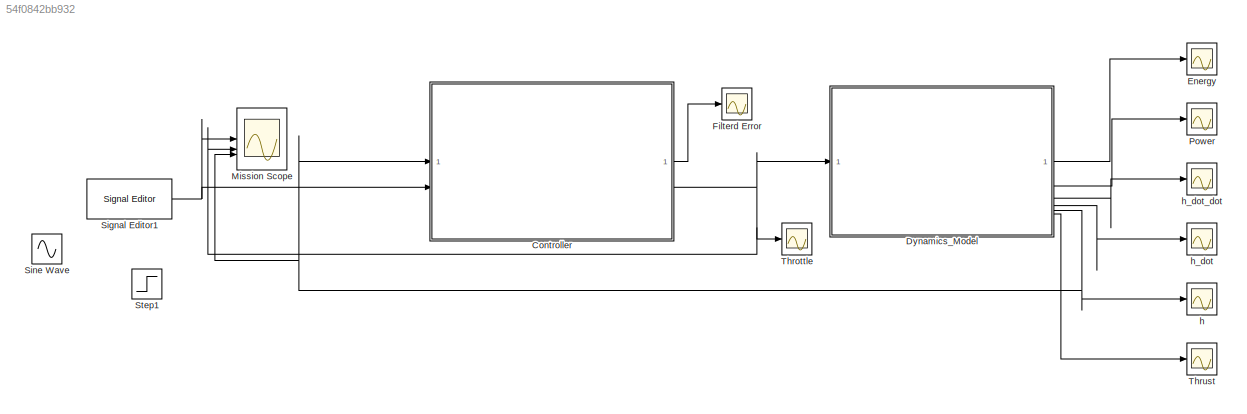
MODEL slx_54f0842bb932
KIND model
CONFIG AbsTol = auto
CONFIG EnableMultiTasking = off
CONFIG FixedStep = auto
CONFIG MaxStep = auto
CONFIG MinStep = auto
CONFIG RelTol = 1e-3
CONFIG SampleTimeConstraint = Unconstrained
CONFIG SolverName = VariableStepAuto
CONFIG StartTime = 0.0
CONFIG StopTime = 75
BLOCK [ModelReference] Controller
  ModelNameDialog = Controller.slx
  ModelReferenceVersion = 1.15
BLOCK [ModelReference] Dynamics_Model
  ModelNameDialog = Dynamics_Model.slx
  ModelReferenceVersion = 1.18
BLOCK [Scope] Energy
  Floating = off
  NumInputPorts = 1
  ScopeSpecificationString = Simulink.scopes.TimeScopeBlockCfg('CurrentConfiguration', extmgr.ConfigurationSet(extmgr.Configuration('Core','General UI',true),extmgr.Configuration('Core','Source UI',true),extmgr.Configuration('Sources','WiredSimulink',true,'DataLoggingSaveFormat','Array','DataLoggingLimitDataPoints',true,'DataLoggingDecimation','1','DataLoggingVariableName','ScopeData3'),extmgr.Configuration('Visuals','Time Do...<+1787ch>
BLOCK [Scope] Filterd Error
  Floating = off
  NumInputPorts = 1
  ScopeSpecificationString = Simulink.scopes.TimeScopeBlockCfg('CurrentConfiguration', extmgr.ConfigurationSet(extmgr.Configuration('Core','General UI',true),extmgr.Configuration('Core','Source UI',true),extmgr.Configuration('Sources','WiredSimulink',true,'DataLoggingVariableName','ScopeData5','DataLoggingSaveFormat','Array','DataLoggingLimitDataPoints',true,'DataLoggingDecimation','1'),extmgr.Configuration('Visuals','Time Do...<+1747ch>
BLOCK [Scope] Mission Scope
  Floating = off
  NumInputPorts = 3
  ScopeSpecificationString = Simulink.scopes.TimeScopeBlockCfg('CurrentConfiguration', extmgr.ConfigurationSet(extmgr.Configuration('Core','General UI',true),extmgr.Configuration('Core','Source UI',true),extmgr.Configuration('Sources','WiredSimulink',true,'DataLoggingVariableName','ScopeData1','DataLoggingSaveFormat','Array','DataLoggingLimitDataPoints',true,'DataLoggingDecimation','1'),extmgr.Configuration('Visuals','Time Do...<+1796ch>
BLOCK [Scope] Power
  Floating = off
  NumInputPorts = 1
  ScopeSpecificationString = Simulink.scopes.TimeScopeBlockCfg('CurrentConfiguration', extmgr.ConfigurationSet(extmgr.Configuration('Core','General UI',true),extmgr.Configuration('Core','Source UI',true),extmgr.Configuration('Sources','WiredSimulink',true,'DataLoggingSaveFormat','Array','DataLoggingLimitDataPoints',true,'DataLoggingDecimation','1','DataLoggingVariableName','ScopeData2'),extmgr.Configuration('Visuals','Time Do...<+1773ch>
BLOCK [Reference] Signal Editor1  REF=SignalEditorBlockLib/Signal Editor
  SourceBlock = SignalEditorBlockLib/Signal Editor
  SourceType = SignalEditor
  UserDataPersistent = on
BLOCK [Sin] Sine Wave
  Amplitude = 0.5
  Bias = 1
  SampleTime = 0
BLOCK [Step] Step1
  SampleTime = 0.05
  Time = 10
BLOCK [Scope] Throttle
  Floating = off
  NumInputPorts = 1
  ScopeSpecificationString = Simulink.scopes.TimeScopeBlockCfg('CurrentConfiguration', extmgr.ConfigurationSet(extmgr.Configuration('Core','General UI',true),extmgr.Configuration('Core','Source UI',true),extmgr.Configuration('Sources','WiredSimulink',true,'DataLoggingSaveFormat','Array','DataLoggingLimitDataPoints',true,'DataLoggingDecimation','1','DataLoggingVariableName','ScopeData3'),extmgr.Configuration('Visuals','Time Do...<+1768ch>
BLOCK [Scope] Thrust
  Floating = off
  NumInputPorts = 1
  ScopeSpecificationString = Simulink.scopes.TimeScopeBlockCfg('CurrentConfiguration', extmgr.ConfigurationSet(extmgr.Configuration('Core','General UI',true),extmgr.Configuration('Core','Source UI',true),extmgr.Configuration('Sources','WiredSimulink',true,'DataLoggingSaveFormat','Array','DataLoggingLimitDataPoints',true,'DataLoggingDecimation','1','DataLoggingVariableName','ScopeData2'),extmgr.Configuration('Visuals','Time Do...<+1749ch>
BLOCK [Scope] h
  Floating = off
  NumInputPorts = 1
  ScopeSpecificationString = Simulink.scopes.TimeScopeBlockCfg('CurrentConfiguration', extmgr.ConfigurationSet(extmgr.Configuration('Core','General UI',true),extmgr.Configuration('Core','Source UI',true),extmgr.Configuration('Sources','WiredSimulink',true,'DataLoggingSaveFormat','Array','DataLoggingLimitDataPoints',true,'DataLoggingDecimation','1','DataLoggingVariableName','ScopeData4'),extmgr.Configuration('Visuals','Time Do...<+1751ch>
BLOCK [Scope] h_dot
  Floating = off
  NumInputPorts = 1
  ScopeSpecificationString = Simulink.scopes.TimeScopeBlockCfg('CurrentConfiguration', extmgr.ConfigurationSet(extmgr.Configuration('Core','General UI',true),extmgr.Configuration('Core','Source UI',true),extmgr.Configuration('Sources','WiredSimulink',true,'DataLoggingSaveFormat','Array','DataLoggingLimitDataPoints',true,'DataLoggingDecimation','1'),extmgr.Configuration('Visuals','Time Domain',true,'SerializedDisplays',{struct...<+1769ch>
BLOCK [Scope] h_dot_dot
  Floating = off
  NumInputPorts = 1
  ScopeSpecificationString = Simulink.scopes.TimeScopeBlockCfg('CurrentConfiguration', extmgr.ConfigurationSet(extmgr.Configuration('Core','General UI',true),extmgr.Configuration('Core','Source UI',true),extmgr.Configuration('Sources','WiredSimulink',true,'DataLoggingSaveFormat','Array','DataLoggingLimitDataPoints',true,'DataLoggingDecimation','1','DataLoggingVariableName','ScopeData1'),extmgr.Configuration('Visuals','Time Do...<+1771ch>
LINE Controller:1 -> Filterd Error:1
NET Controller:2 -> Dynamics_Model:1, Mission Scope:2, Throttle:1
LINE Dynamics_Model:1 -> Energy:1
LINE Dynamics_Model:2 -> Power:1
LINE Dynamics_Model:3 -> h_dot_dot:1
LINE Dynamics_Model:4 -> h_dot:1
NET Dynamics_Model:5 -> Controller:1, Mission Scope:3, h:1
LINE Dynamics_Model:6 -> Thrust:1
NET Signal Editor1:1 -> Controller:2, Mission Scope:1
note: NET lines group one-source signal fan-out (src -> all destinations, sorted); 1:1 wires keep LINE
